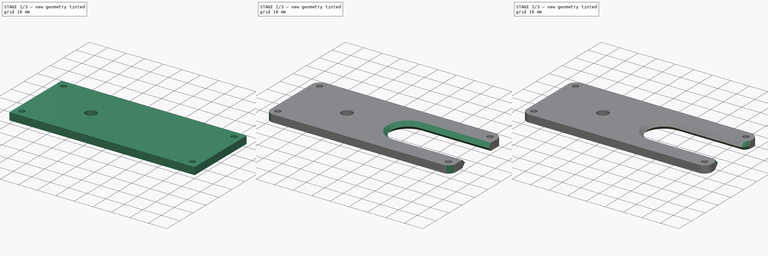
[diagram: build sequence overview — one tinted view per stage of 3, left to right]
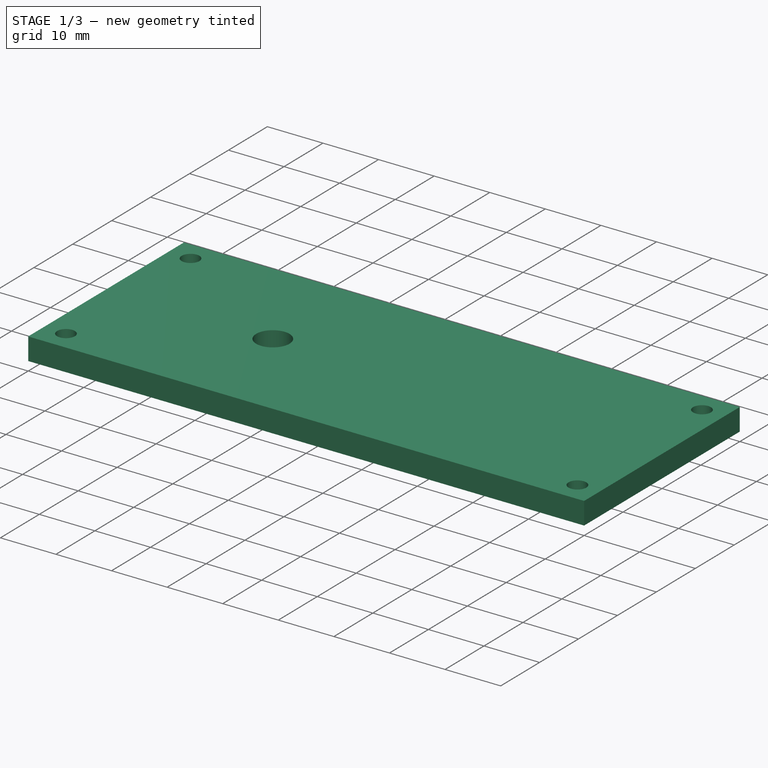
[diagram: stage 1 of 3 — iso view after this stage's code; geometry added in this stage tinted green]
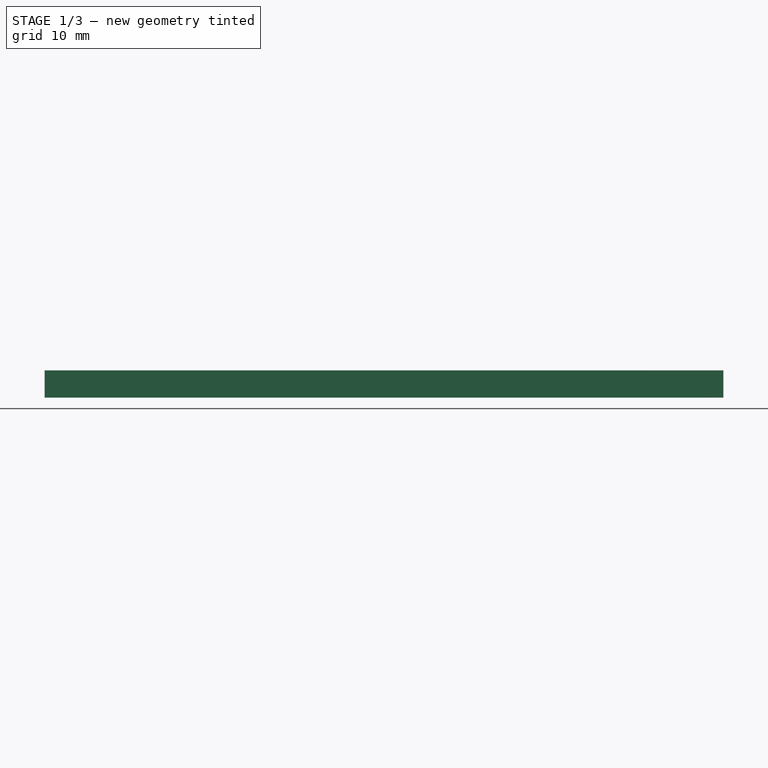
[diagram: stage 1 of 3 — front view after this stage's code; geometry added in this stage tinted green]
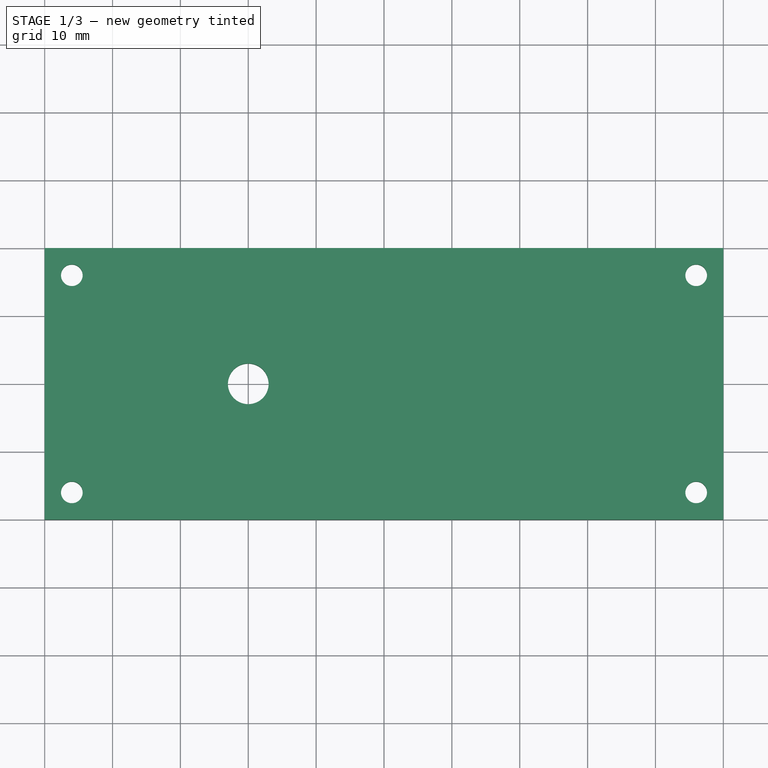
[diagram: stage 1 of 3 — top view after this stage's code; geometry added in this stage tinted green]
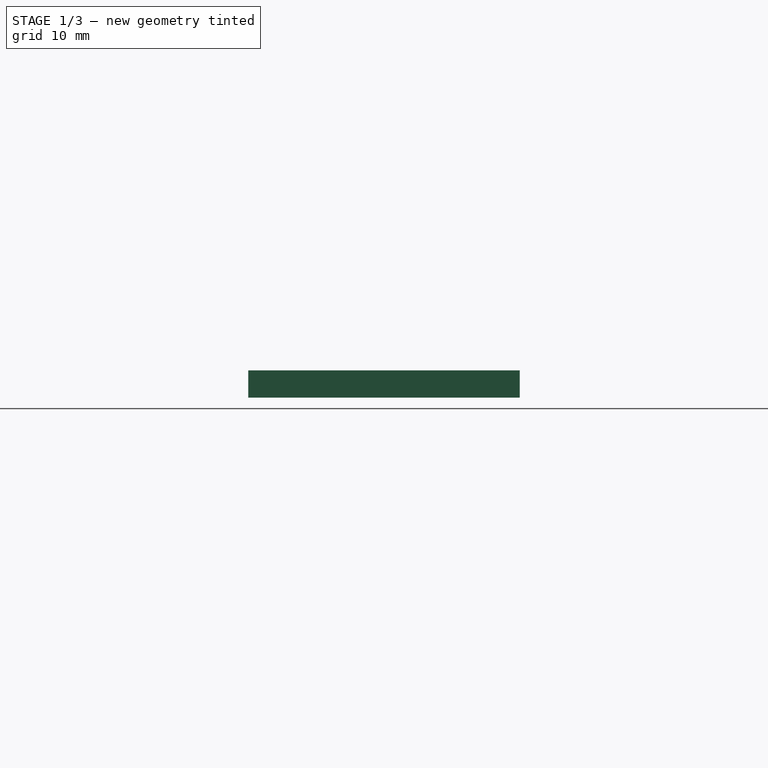
[diagram: stage 1 of 3 — right view after this stage's code; geometry added in this stage tinted green]
FCSTD DOCUMENT  (FreeCAD 0.18R15441 (Git))
Label: FrameTop
License: All rights reserved
LicenseURL: http://en.wikipedia.org/wiki/All_rights_reserved
objects: Sketcher::SketchObject×8, PartDesign::Plane×2, PartDesign::SubtractiveLoft×2, PartDesign::Fillet×2, PartDesign::Pad×1, PartDesign::Pocket×1, PartDesign::Body×1, Part::FeaturePython×1, App::Part×1
note: 22 computed .brp shape members not serialized (recipe doc carries the construction recipe); baked Part::Feature solids carry a one-line shape summary decoded from their .brp

FEATURE [Sketcher::SketchObject] Sketch  label="FT_BaseSketch"
  MapMode = 5
  Placement = pos=(0,0,0) rot=(0.57735,0.57735,0.57735;2.0944rad)
  Support = -> [YZ_Plane001]
  sketch-geometry (8):
    g0: LineSegment StartX=0 StartY=2 StartZ=0 EndX=-20 EndY=2 EndZ=0
    g1: LineSegment StartX=-20 StartY=2 StartZ=0 EndX=-20 EndY=0 EndZ=0
    g2: LineSegment StartX=-20 StartY=0 StartZ=0 EndX=-20 EndY=-2 EndZ=0
    g3: LineSegment StartX=-20 StartY=-2 StartZ=0 EndX=0 EndY=-2 EndZ=0
    g4: LineSegment StartX=0 StartY=-2 StartZ=0 EndX=20 EndY=-2 EndZ=0
    g5: LineSegment StartX=20 StartY=-2 StartZ=0 EndX=20 EndY=0 EndZ=0
    g6: LineSegment StartX=20 StartY=0 StartZ=0 EndX=20 EndY=2 EndZ=0
    g7: LineSegment StartX=20 StartY=2 StartZ=0 EndX=0 EndY=2 EndZ=0
  constraints (24):
    c: PointOnObject(g0,g-2)
    c: Horizontal(g0)
    c: Coincident(g1,g0)
    c: PointOnObject(g1,g-1)
    c: Coincident(g2,g1)
    c: Vertical(g2)
    c: Vertical(g1)
    c: Coincident(g3,g2)
    c: PointOnObject(g3,g-2)
    c: Horizontal(g3)
    c: Coincident(g4,g3)
    c: Horizontal(g4)
    c: Coincident(g5,g4)
    c: Vertical(g5)
    c: PointOnObject(g5,g-1)
    c: Coincident(g6,g5)
    c: Vertical(g6)
    c: Coincident(g7,g6)
    c: Coincident(g7,g0)
    c: Horizontal(g7)
    c: Equal(g3,g4)
    c: Equal(g1,g2)
    c: Distance(g0,g6) = 40
    c: Distance(g0,g2) = 4
FEATURE [PartDesign::Pad] Pad  label="FT_BasePad"
  Length = 100
  Length2 = 100
  Placement = pos=(0,0,0) rot=(0.57735,0.57735,0.57735;2.0944rad)
  Profile = -> Sketch
  Type = 0
FEATURE [Sketcher::SketchObject] Sketch001  label="FT_MotorClampingSketch"
  ExternalGeometry = -> [Sketch]
  MapMode = 5
  Support = -> [XY_Plane001]
  sketch-geometry (12):
    g0: Circle CenterX=30 CenterY=0 CenterZ=0 NormalX=0 NormalY=0 NormalZ=1 AngleXU=0 Radius=3
    g1: Circle CenterX=4 CenterY=16 CenterZ=0 NormalX=0 NormalY=0 NormalZ=1 AngleXU=0 Radius=1.6
    g2: Circle CenterX=4 CenterY=-16 CenterZ=0 NormalX=0 NormalY=0 NormalZ=1 AngleXU=0 Radius=1.6
    g3: LineSegment [constr] StartX=4 StartY=16 StartZ=0 EndX=4 EndY=20 EndZ=0
    g4: LineSegment [constr] StartX=4 StartY=20 StartZ=0 EndX=2.0002e-12 EndY=20 EndZ=0
    g5: LineSegment [constr] StartX=4 StartY=20 StartZ=0 EndX=8 EndY=20 EndZ=0
    g6: LineSegment [constr] StartX=8 StartY=20 StartZ=0 EndX=92 EndY=20 EndZ=0
    g7: LineSegment [constr] StartX=92 StartY=20 StartZ=0 EndX=96 EndY=20 EndZ=0
    g8: LineSegment [constr] StartX=96 StartY=20 StartZ=0 EndX=100 EndY=20 EndZ=0
    g9: LineSegment [constr] StartX=96 StartY=20 StartZ=0 EndX=96 EndY=16 EndZ=0
    g10: Circle CenterX=96 CenterY=16 CenterZ=0 NormalX=0 NormalY=0 NormalZ=1 AngleXU=0 Radius=1.6
    g11: Circle CenterX=96 CenterY=-16 CenterZ=0 NormalX=0 NormalY=0 NormalZ=1 AngleXU=0 Radius=1.6
  constraints (32):
    c: Radius(g0) = 3
    c: Symmetric(g2,g1,g-1)
    c: Equal(g1,g2)
    c: Coincident(g3,g1)
    c: Vertical(g3)
    c: Coincident(g4,g3)
    c: Coincident(g4,g-3)
    c: Horizontal(g4)
    c: Equal(g3,g4)
    c: Coincident(g5,g3)
    c: Horizontal(g5)
    c: Equal(g5,g3)
    c: Distance(g5,g4) = 8
    c: Coincident(g6,g5)
    c: Horizontal(g6)
    c: Coincident(g7,g6)
    c: Horizontal(g7)
    c: Coincident(g8,g7)
    c: Horizontal(g8)
    c: Coincident(g9,g7)
    c: Vertical(g9)
    c: Equal(g7,g8)
    c: Equal(g8,g9)
    c: Distance(g4,g8) = 100
    c: Distance(g6,g8) = 8
    c: Coincident(g10,g9)
    c: Symmetric(g10,g11,g-1)
    c: Equal(g10,g11)
    c: Equal(g10,g1)
    c: Radius(g1) = 1.6
    c: Distance(g-1,g0) = 30
    c: PointOnObject(g0,g-1)
FEATURE [PartDesign::Pocket] Pocket  label="FT_MotorClampingPocket"
  BaseFeature = -> Pad
  Length = 5
  Length2 = 100
  Midplane = true
  Placement = pos=(0,0,0) rot=(0.57735,0.57735,0.57735;2.0944rad)
  Profile = -> Sketch001
  Type = 1
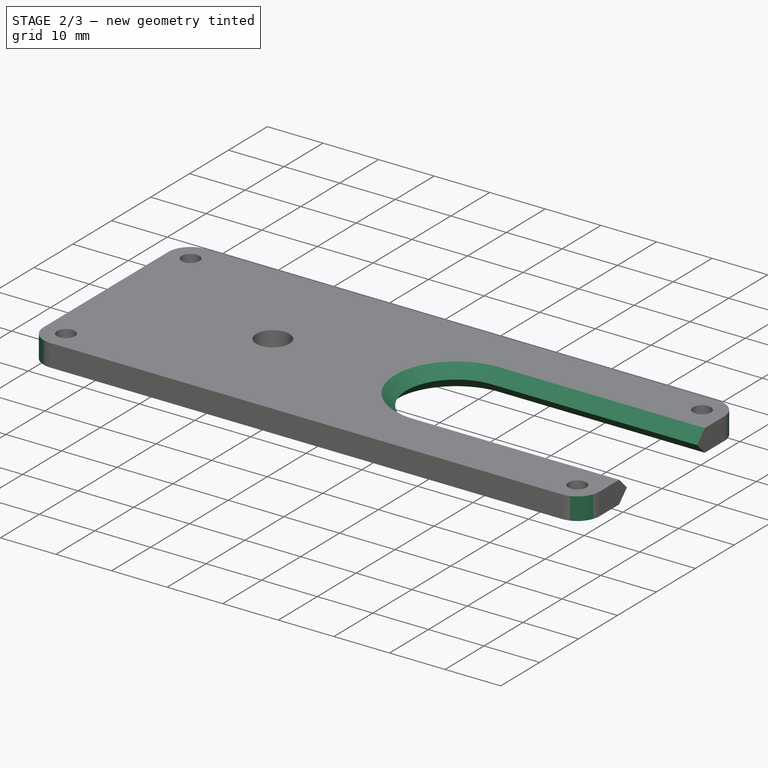
[diagram: stage 2 of 3 — iso view after this stage's code; geometry added in this stage tinted green]
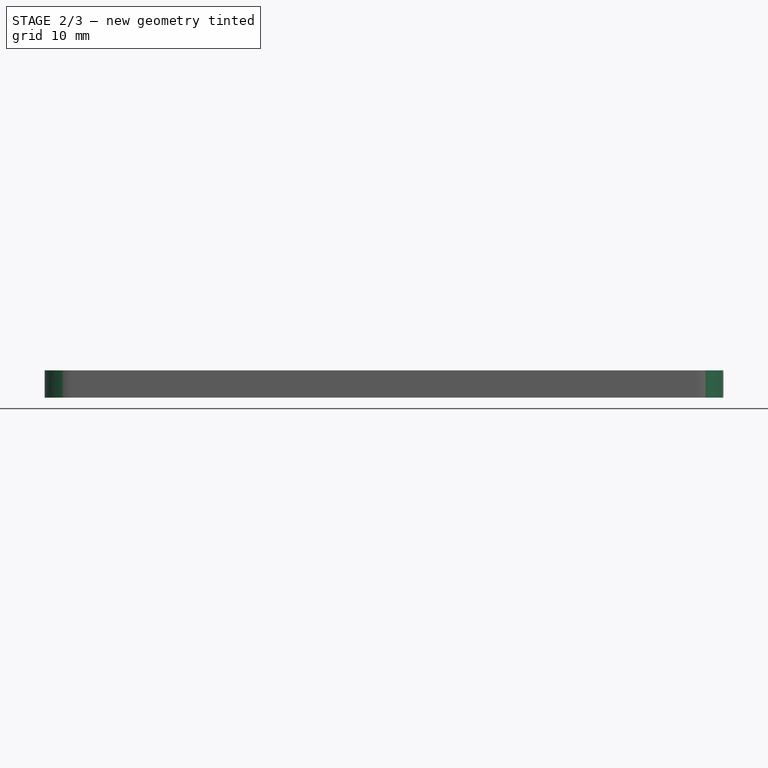
[diagram: stage 2 of 3 — front view after this stage's code; geometry added in this stage tinted green]
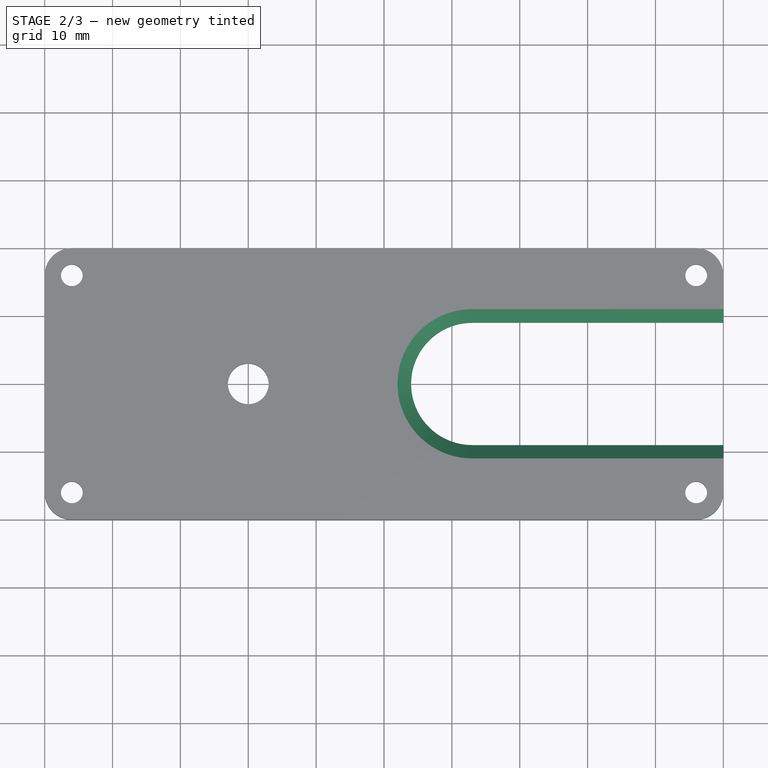
[diagram: stage 2 of 3 — top view after this stage's code; geometry added in this stage tinted green]
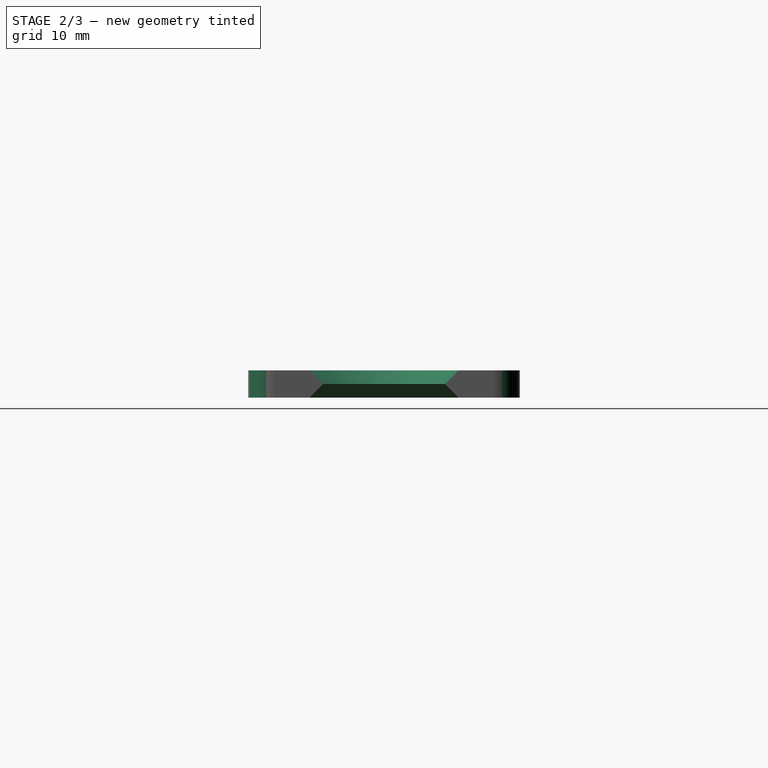
[diagram: stage 2 of 3 — right view after this stage's code; geometry added in this stage tinted green]
FEATURE [Sketcher::SketchObject] Sketch003  label="FT_RailEndCenterSketch"
  ExternalGeometry = -> [Sketch001]
  MapMode = 5
  Support = -> [XY_Plane001]
  sketch-geometry (1):
    g0: Circle CenterX=63 CenterY=0 CenterZ=0 NormalX=0 NormalY=0 NormalZ=1 AngleXU=0 Radius=9
  constraints (3):
    c: PointOnObject(g0,g-1)
    c: Radius(g0) = 9
    c: Distance(g0,g-3) = 33
FEATURE [PartDesign::Plane] DatumPlane  label="FT_TopPlane"
  AttachmentOffset = pos=(0,0,2) rot=(0,0,1;0rad)
  Length = 123.266
  MapMode = 5
  Placement = pos=(0,0,2) rot=(0,0,1;0rad)
  ResizeMode = 0
  Support = -> [XY_Plane001]
  Width = 53.2665
FEATURE [PartDesign::Plane] DatumPlane001  label="FT_BottomPlane"
  AttachmentOffset = pos=(0,0,-2) rot=(0,0,1;0rad)
  Length = 123.266
  MapMode = 5
  Placement = pos=(0,0,-2) rot=(0,0,1;0rad)
  ResizeMode = 0
  Support = -> [XY_Plane001]
  Width = 53.2665
FEATURE [Sketcher::SketchObject] Sketch004  label="FT_RailEndTopSketch"
  ExternalGeometry = -> [Sketch003]
  MapMode = 5
  Placement = pos=(0,0,2) rot=(0,0,1;0rad)
  Support = -> [DatumPlane]
  sketch-geometry (1):
    g0: Circle CenterX=63 CenterY=0 CenterZ=0 NormalX=0 NormalY=0 NormalZ=1 AngleXU=0 Radius=11
  constraints (2):
    c: Coincident(g0,g-3)
    c: Radius(g0) = 11
FEATURE [Sketcher::SketchObject] Sketch005  label="FT_RailEndBottomSketch"
  ExternalGeometry = -> [Sketch004]
  MapMode = 5
  Placement = pos=(0,0,-2) rot=(0,0,1;0rad)
  Support = -> [DatumPlane001]
  sketch-geometry (1):
    g0: Circle CenterX=63 CenterY=0 CenterZ=0 NormalX=0 NormalY=0 NormalZ=1 AngleXU=0 Radius=11
  constraints (2):
    c: Coincident(g0,g-3)
    c: Equal(g0,g-3)
FEATURE [PartDesign::SubtractiveLoft] SubtractiveLoft  label="FT_RailEndLoft"
  BaseFeature = -> Pocket
  Closed = false
  Placement = pos=(0,0,0) rot=(0.57735,0.57735,0.57735;2.0944rad)
  Profile = -> Sketch004
  Ruled = true
  Sections = -> [Sketch003,Sketch005]
FEATURE [Sketcher::SketchObject] Sketch006  label="FT_RailCenter"
  ExternalGeometry = -> [Sketch003]
  MapMode = 5
  Support = -> [XY_Plane001]
  sketch-geometry (5):
    g0: LineSegment StartX=63 StartY=0 StartZ=0 EndX=63 EndY=9 EndZ=0
    g1: LineSegment StartX=63 StartY=0 StartZ=0 EndX=63 EndY=-9 EndZ=0
    g2: LineSegment StartX=63 StartY=9 StartZ=0 EndX=113 EndY=9 EndZ=0
    g3: LineSegment StartX=63 StartY=-9 StartZ=0 EndX=113 EndY=-9 EndZ=0
    g4: LineSegment StartX=113 StartY=9 StartZ=0 EndX=113 EndY=-9 EndZ=0
  constraints (14):
    c: Coincident(g0,g-3)
    c: PointOnObject(g0,g-3)
    c: Vertical(g0)
    c: Coincident(g1,g0)
    c: PointOnObject(g1,g-3)
    c: Vertical(g1)
    c: Coincident(g2,g0)
    c: Horizontal(g2)
    c: Coincident(g3,g1)
    c: Horizontal(g3)
    c: Coincident(g4,g2)
    c: Coincident(g4,g3)
    c: Vertical(g4)
    c: Distance(g2) = 50
FEATURE [Sketcher::SketchObject] Sketch007  label="FT_RailTop"
  ExternalGeometry = -> [Sketch006,Sketch004]
  MapMode = 5
  Placement = pos=(0,0,2) rot=(0,0,1;0rad)
  Support = -> [DatumPlane]
  sketch-geometry (6):
    g0: LineSegment StartX=63 StartY=0 StartZ=0 EndX=63 EndY=11 EndZ=0
    g1: LineSegment StartX=63 StartY=0 StartZ=0 EndX=63 EndY=-11 EndZ=0
    g2: LineSegment StartX=63 StartY=11 StartZ=0 EndX=113 EndY=11 EndZ=0
    g3: LineSegment StartX=63 StartY=-11 StartZ=0 EndX=113 EndY=-11 EndZ=0
    g4: LineSegment StartX=113 StartY=11 StartZ=0 EndX=113 EndY=-11 EndZ=0
    g5: LineSegment [constr] StartX=113 StartY=9 StartZ=0 EndX=113 EndY=11 EndZ=0
  constraints (16):
    c: Coincident(g0,g-4)
    c: PointOnObject(g0,g-4)
    c: Vertical(g0)
    c: Coincident(g1,g0)
    c: PointOnObject(g1,g-4)
    c: Vertical(g1)
    c: Coincident(g2,g0)
    c: Horizontal(g2)
    c: Coincident(g3,g1)
    c: Horizontal(g3)
    c: Coincident(g4,g2)
    c: Coincident(g4,g3)
    c: Vertical(g4)
    c: Coincident(g5,g-3)
    c: Coincident(g5,g2)
    c: Vertical(g5)
FEATURE [Sketcher::SketchObject] Sketch008  label="FT_RailBottom"
  ExternalGeometry = -> [Sketch007]
  MapMode = 5
  Placement = pos=(0,0,-2) rot=(0,0,1;0rad)
  Support = -> [DatumPlane001]
  sketch-geometry (5):
    g0: LineSegment StartX=63 StartY=11 StartZ=0 EndX=63 EndY=0 EndZ=0
    g1: LineSegment StartX=63 StartY=0 StartZ=0 EndX=63 EndY=-11 EndZ=0
    g2: LineSegment StartX=63 StartY=-11 StartZ=0 EndX=113 EndY=-11 EndZ=0
    g3: LineSegment StartX=113 StartY=-11 StartZ=0 EndX=113 EndY=11 EndZ=0
    g4: LineSegment StartX=113 StartY=11 StartZ=0 EndX=63 EndY=11 EndZ=0
  constraints (10):
    c: Coincident(g0,g-4)
    c: Coincident(g0,g-5)
    c: Coincident(g1,g0)
    c: Coincident(g1,g-5)
    c: Coincident(g2,g1)
    c: Coincident(g2,g-3)
    c: Coincident(g3,g2)
    c: Coincident(g3,g-3)
    c: Coincident(g4,g3)
    c: Coincident(g4,g0)
FEATURE [PartDesign::SubtractiveLoft] SubtractiveLoft001  label="FT_RailLoft"
  BaseFeature = -> SubtractiveLoft
  Closed = false
  Placement = pos=(0,0,0) rot=(0.57735,0.57735,0.57735;2.0944rad)
  Profile = -> Sketch007
  Ruled = true
  Sections = -> [Sketch006,Sketch008]
FEATURE [PartDesign::Fillet] Fillet  label="FrameFillet"
  Base = -> SubtractiveLoft001 [Edge19,Edge55,Edge16,Edge11]
  BaseFeature = -> SubtractiveLoft001
  Placement = pos=(0,0,0) rot=(0.57735,0.57735,0.57735;2.0944rad)
  Radius = 4
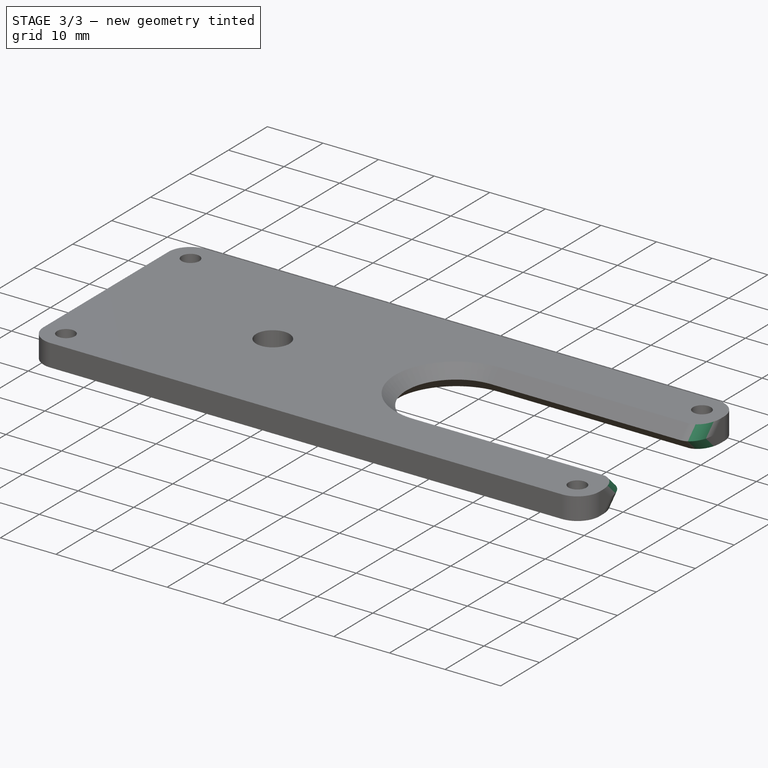
[diagram: stage 3 of 3 — iso view after this stage's code; geometry added in this stage tinted green]
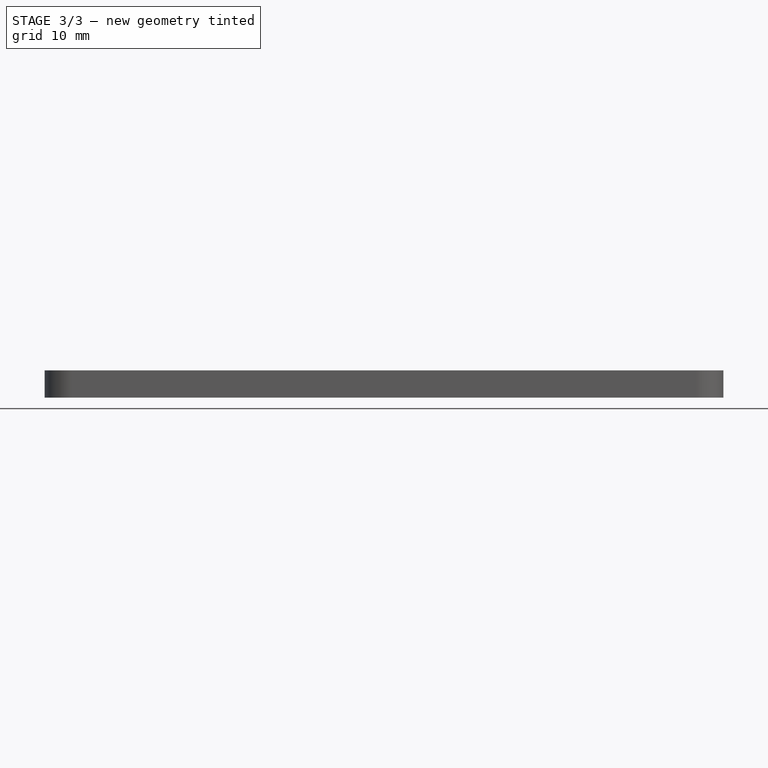
[diagram: stage 3 of 3 — front view after this stage's code; geometry added in this stage tinted green]
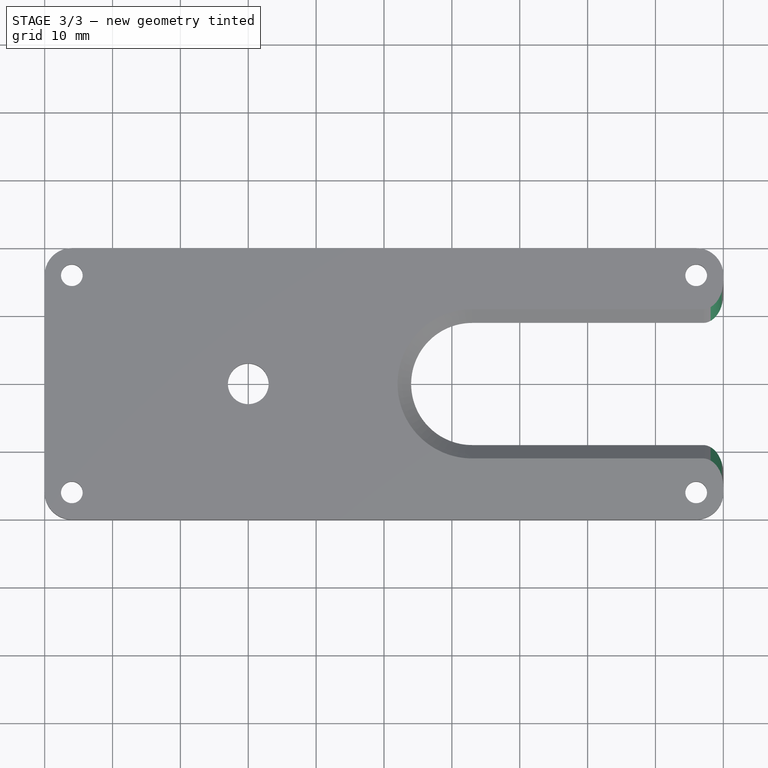
[diagram: stage 3 of 3 — top view after this stage's code; geometry added in this stage tinted green]
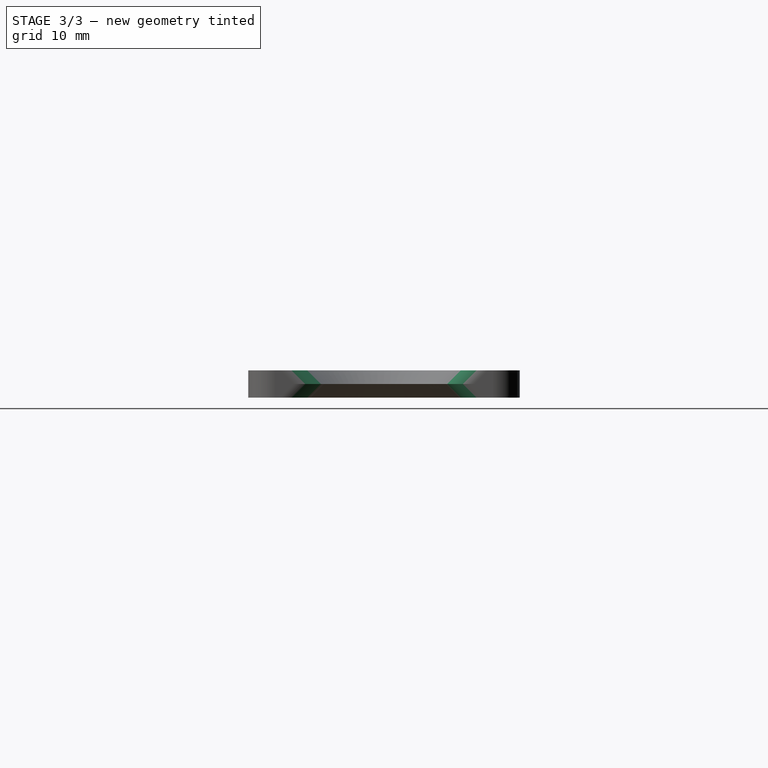
[diagram: stage 3 of 3 — right view after this stage's code; geometry added in this stage tinted green]
FEATURE [PartDesign::Fillet] Fillet001  label="RailFillet"
  Base = -> Fillet [Edge41,Edge40,Edge73,Edge75]
  BaseFeature = -> Fillet
  Placement = pos=(0,0,0) rot=(0.57735,0.57735,0.57735;2.0944rad)
  Radius = 3
FEATURE [PartDesign::Body] Body  label="FrameTopBody"
  Group = -> [Sketch,Pad,Sketch001,Pocket,Sketch003,DatumPlane,DatumPlane001,Sketch004,Sketch005,SubtractiveLoft,Sketch006,Sketch007,Sketch008,SubtractiveLoft001,Fillet,Fillet001]
  Origin = -> Origin001
  Tip = -> Fillet001
FEATURE [Part::FeaturePython] refine  label="FrameTopBody_Refined"  # WARN: FeaturePython — macro-defined, semantics opaque (R4)
  Base = -> Body
FEATURE [App::Part] Part  label="FrameTop"
  Group = -> [Body,refine]
  License = CC BY 3.0
  LicenseURL = http://creativecommons.org/licenses/by/3.0/
  Origin = -> Origin
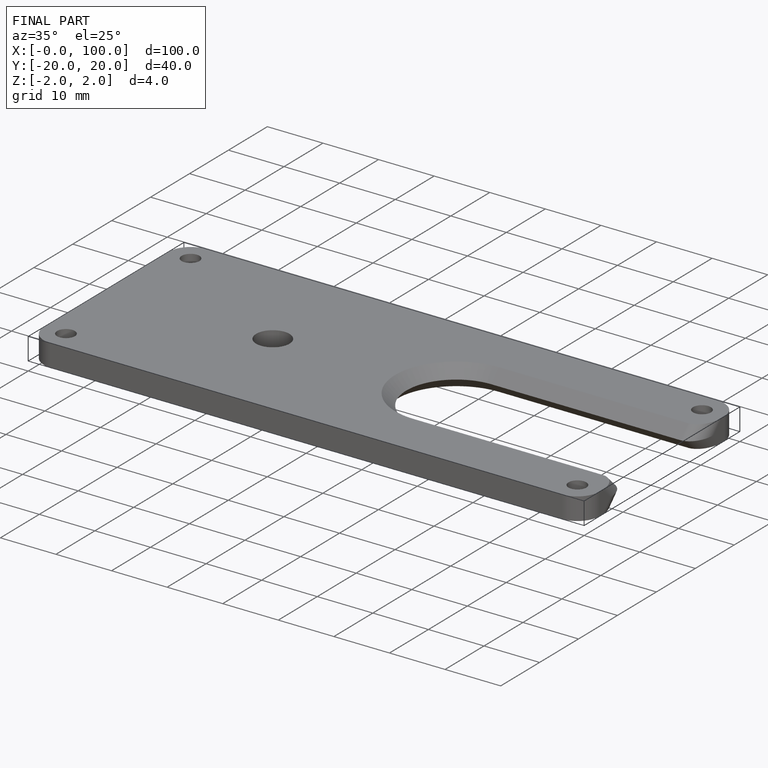
[diagram: finished part — iso view with bounding-box wireframe]
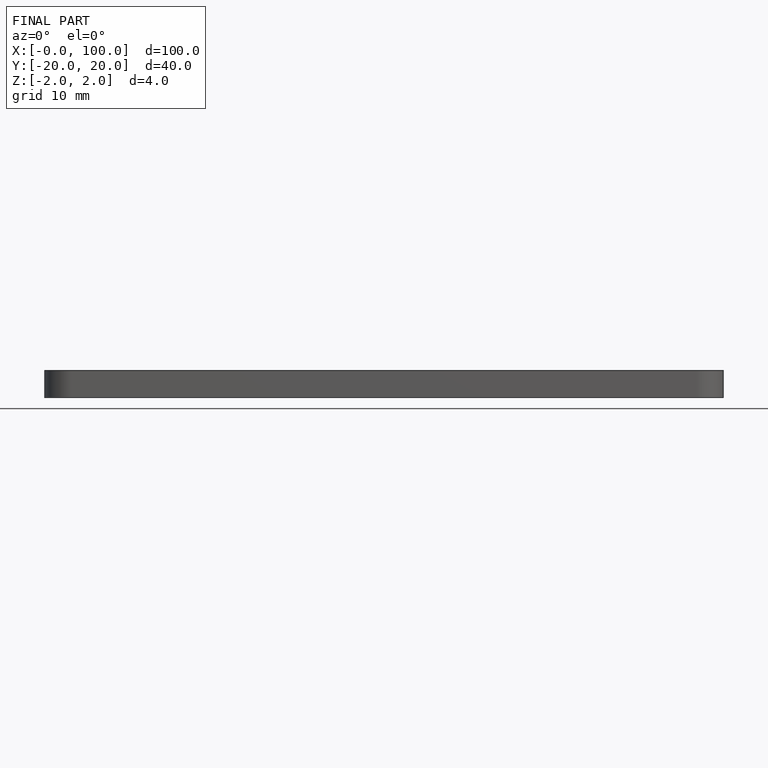
[diagram: finished part — front view with bounding-box wireframe]
